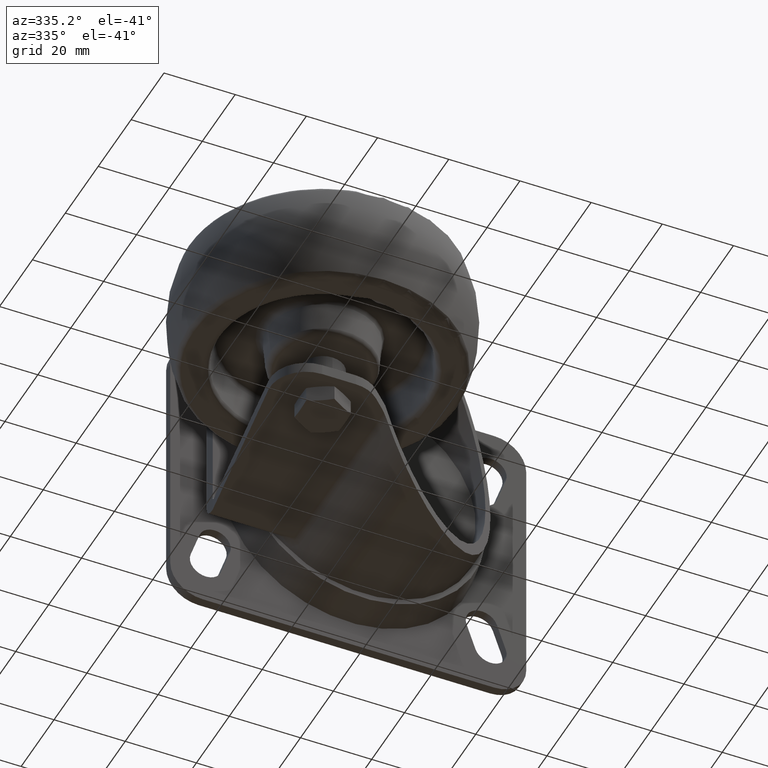
[diagram: clean part render]
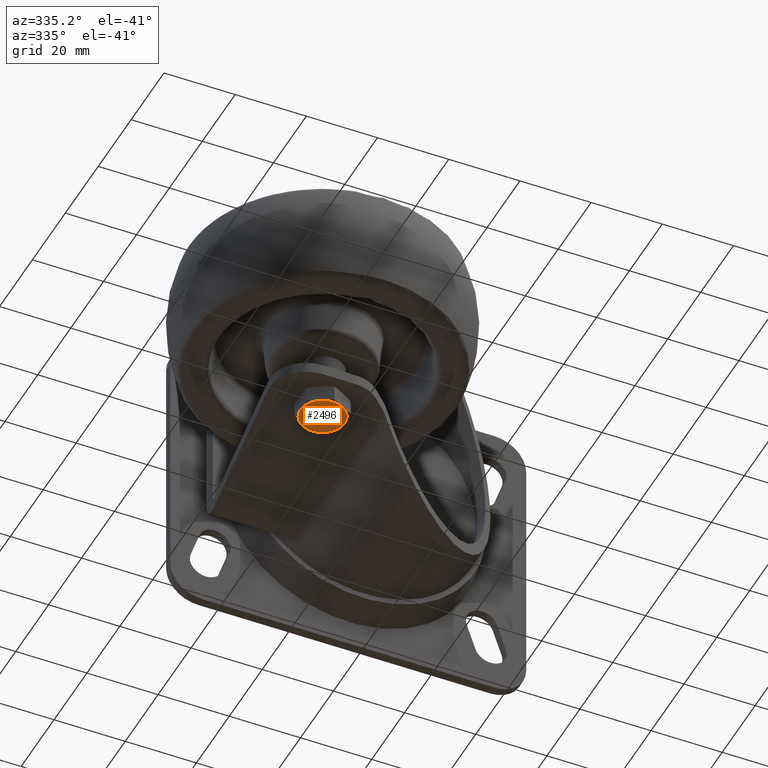
[diagram: same view with one face highlighted and labeled with its STEP entity id]
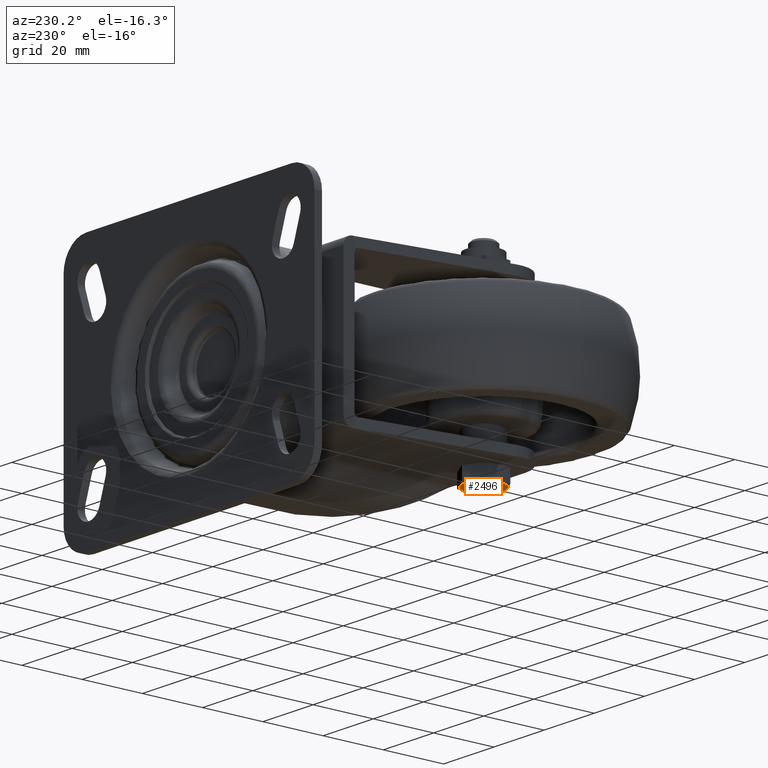
[diagram: same view with one face highlighted and labeled with its STEP entity id]
A machine part, auxiliary view. The second image highlights one B-rep face of the part: STEP entity #2496.
A second angle (auxiliary view) of the same face is appended — the face is thin or edge-on in the first view.
In plain terms, the highlighted planar face has unit normal (0, 0, -1).
Its self-contained STEP definition (entity closure, byte-faithful):
#302=FACE_OUTER_BOUND('',#470,.T.);
#470=EDGE_LOOP('',(#2052,#2053,#2054,#2055,#2056,#2057));
#601=CIRCLE('',#2734,6.25833333333333);
#602=CIRCLE('',#2736,6.25833333333333);
#613=CIRCLE('',#2775,6.25833333333333);
#614=CIRCLE('',#2777,6.25833333333333);
#615=CIRCLE('',#2779,6.25833333333333);
#616=CIRCLE('',#2781,6.25833333333333);
#1078=VERTEX_POINT('',#4333);
#1079=VERTEX_POINT('',#4337);
#1080=VERTEX_POINT('',#4343);
#1081=VERTEX_POINT('',#4344);
#1096=VERTEX_POINT('',#4432);
#1102=VERTEX_POINT('',#4471);
#1374=EDGE_CURVE('',#1079,#1078,#601,.T.);
#1376=EDGE_CURVE('',#1080,#1081,#602,.T.);
#1425=EDGE_CURVE('',#1078,#1096,#613,.T.);
#1426=EDGE_CURVE('',#1096,#1080,#614,.T.);
#1427=EDGE_CURVE('',#1081,#1102,#615,.T.);
#1428=EDGE_CURVE('',#1102,#1079,#616,.T.);
#2052=ORIENTED_EDGE('',*,*,#1374,.T.);
#2053=ORIENTED_EDGE('',*,*,#1425,.T.);
#2054=ORIENTED_EDGE('',*,*,#1426,.T.);
#2055=ORIENTED_EDGE('',*,*,#1376,.T.);
#2056=ORIENTED_EDGE('',*,*,#1427,.T.);
#2057=ORIENTED_EDGE('',*,*,#1428,.T.);
#2224=PLANE('',#2783);
#2496=ADVANCED_FACE('',(#302),#2224,.T.);
#2734=AXIS2_PLACEMENT_3D('',#4338,#3344,#3345);
#2736=AXIS2_PLACEMENT_3D('',#4345,#3348,#3349);
#2775=AXIS2_PLACEMENT_3D('',#4500,#3436,#3437);
#2777=AXIS2_PLACEMENT_3D('',#4502,#3440,#3441);
#2779=AXIS2_PLACEMENT_3D('',#4504,#3444,#3445);
#2781=AXIS2_PLACEMENT_3D('',#4506,#3448,#3449);
#2783=AXIS2_PLACEMENT_3D('',#4508,#3452,#3453);
#3344=DIRECTION('center_axis',(4.85722573273506E-16,2.19556013660145E-32,
-1.));
#3345=DIRECTION('ref_axis',(2.08166817117217E-16,1.,1.23066923446344E-31));
#3348=DIRECTION('center_axis',(4.85722573273506E-16,2.19556013660145E-32,
-1.));
#3349=DIRECTION('ref_axis',(2.08166817117217E-16,1.,1.23066923446344E-31));
#3436=DIRECTION('center_axis',(4.85722573273506E-16,2.19556013660145E-32,
-1.));
#3437=DIRECTION('ref_axis',(2.08166817117217E-16,1.,1.23066923446344E-31));
#3440=DIRECTION('center_axis',(4.85722573273506E-16,2.19556013660145E-32,
-1.));
#3441=DIRECTION('ref_axis',(2.08166817117217E-16,1.,1.23066923446344E-31));
#3444=DIRECTION('center_axis',(4.85722573273506E-16,2.19556013660145E-32,
-1.));
#3445=DIRECTION('ref_axis',(2.08166817117217E-16,1.,1.23066923446344E-31));
#3448=DIRECTION('center_axis',(4.85722573273506E-16,2.19556013660145E-32,
-1.));
#3449=DIRECTION('ref_axis',(2.08166817117217E-16,1.,1.23066923446344E-31));
#3452=DIRECTION('center_axis',(4.85722573273506E-16,2.19556013660145E-32,
-1.));
#3453=DIRECTION('ref_axis',(-1.,2.08166817117217E-16,-4.85722573273506E-16));
#4333=CARTESIAN_POINT('',(3.12916666666672,5.41987565201761,-30.2));
#4337=CARTESIAN_POINT('',(-3.12916666666662,5.41987565201761,-30.2));
#4338=CARTESIAN_POINT('Origin',(4.76944872485063E-14,-2.0122792321331E-15,
-30.2));
#4343=CARTESIAN_POINT('',(3.12916666666672,-5.41987565201761,-30.2));
#4344=CARTESIAN_POINT('',(-3.12916666666662,-5.41987565201761,-30.2));
#4345=CARTESIAN_POINT('Origin',(4.76944872485063E-14,-2.0122792321331E-15,
-30.2));
#4432=CARTESIAN_POINT('',(6.25833333333338,-3.31505656259168E-15,-30.2));
#4471=CARTESIAN_POINT('',(-6.25833333333328,-7.09501901674514E-16,-30.2));
#4500=CARTESIAN_POINT('Origin',(4.76944872485063E-14,-2.0122792321331E-15,
-30.2));
#4502=CARTESIAN_POINT('Origin',(4.76944872485063E-14,-2.0122792321331E-15,
-30.2));
#4504=CARTESIAN_POINT('Origin',(4.76944872485063E-14,-2.0122792321331E-15,
-30.2));
#4506=CARTESIAN_POINT('Origin',(4.76944872485063E-14,-2.0122792321331E-15,
-30.2));
#4508=CARTESIAN_POINT('Origin',(4.91122753901695E-14,3.12916666666667,-30.2));